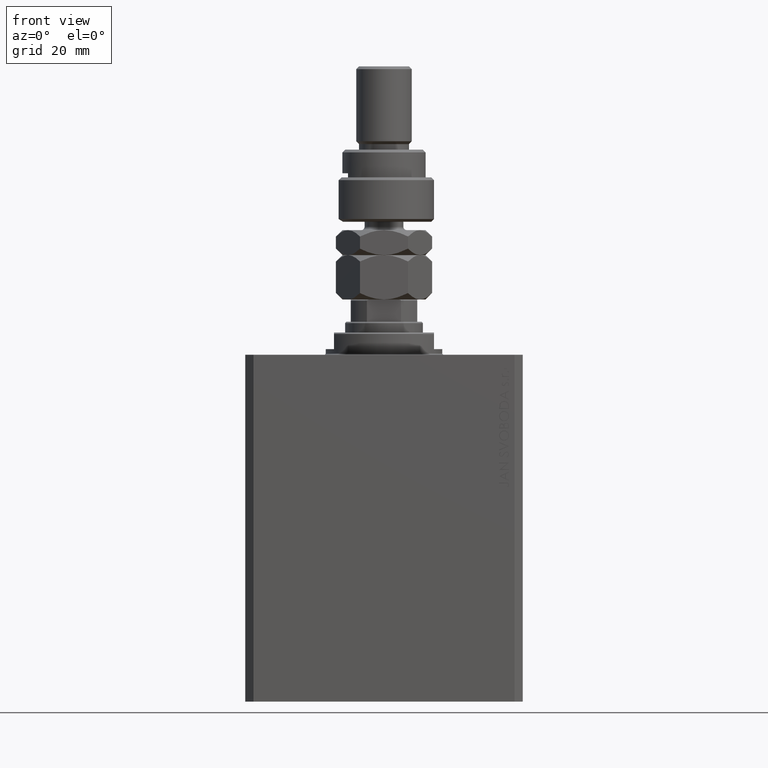
[diagram: clean part render]
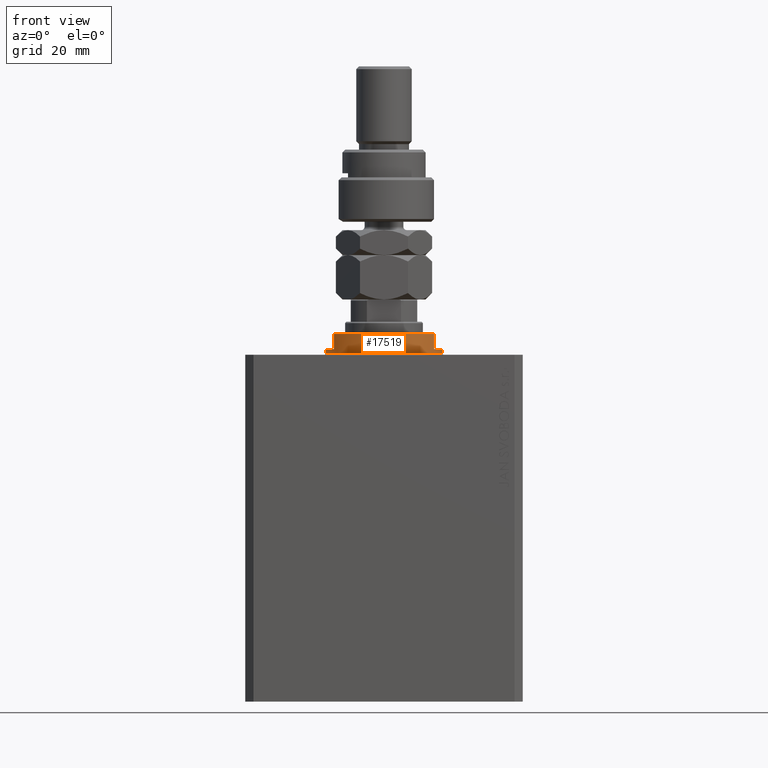
[diagram: same view with one face highlighted and labeled with its STEP entity id]
A machine part, front view. The second image highlights one B-rep face of the part: STEP entity #17519.
In plain terms, the highlighted cylindrical surface (partial cylindrical patch) has radius 21 mm, axis along (0, 0, -1).
Its self-contained STEP definition (entity closure, byte-faithful):
#772 = EDGE_CURVE ( 'NONE', #42263, #28367, #47730, .T. ) ;
#2718 = EDGE_CURVE ( 'NONE', #28367, #21606, #9465, .T. ) ;
#3368 = DIRECTION ( 'NONE',  ( 0.000000000000000000, 0.000000000000000000, -1.000000000000000000 ) ) ;
#3383 = CARTESIAN_POINT ( 'NONE',  ( 0.000000000000000000, 0.000000000000000000, -2.000000000000000000 ) ) ;
#3397 = LINE ( 'NONE', #45797, #23379 ) ;
#4826 = VERTEX_POINT ( 'NONE', #11067 ) ;
#6584 = EDGE_CURVE ( 'NONE', #42263, #4826, #26457, .T. ) ;
#7273 = DIRECTION ( 'NONE',  ( 1.000000000000000000, 0.000000000000000000, 0.000000000000000000 ) ) ;
#7583 = ORIENTED_EDGE ( 'NONE', *, *, #36104, .F. ) ;
#8823 = CARTESIAN_POINT ( 'NONE',  ( -18.00000000000000000, -10.81665382639197048, -2.000000000000000000 ) ) ;
#9465 = LINE ( 'NONE', #24954, #12126 ) ;
#10548 = VECTOR ( 'NONE', #3368, 1000.000000000000000 ) ;
#11050 = EDGE_LOOP ( 'NONE', ( #27677, #33572, #13134, #36958, #7583, #11919, #44505, #13402 ) ) ;
#11067 = CARTESIAN_POINT ( 'NONE',  ( -18.00000000000000000, -10.81665382639197048, -7.499999999999990230 ) ) ;
#11323 = CARTESIAN_POINT ( 'NONE',  ( 0.000000000000000000, 0.000000000000000000, -8.000000000000000000 ) ) ;
#11919 = ORIENTED_EDGE ( 'NONE', *, *, #20467, .F. ) ;
#12126 = VECTOR ( 'NONE', #44019, 1000.000000000000000 ) ;
#13134 = ORIENTED_EDGE ( 'NONE', *, *, #6584, .T. ) ;
#13234 = AXIS2_PLACEMENT_3D ( 'NONE', #14556, #19108, #38195 ) ;
#13402 = ORIENTED_EDGE ( 'NONE', *, *, #50139, .T. ) ;
#13613 = CARTESIAN_POINT ( 'NONE',  ( -21.00000000000000000, 2.571758278209441661E-15, -2.000000000000000000 ) ) ;
#13713 = CARTESIAN_POINT ( 'NONE',  ( 0.000000000000000000, 0.000000000000000000, -2.000000000000000000 ) ) ;
#14556 = CARTESIAN_POINT ( 'NONE',  ( 0.000000000000000000, 0.000000000000000000, -0.5000000000000004441 ) ) ;
#15611 = VERTEX_POINT ( 'NONE', #47370 ) ;
#17273 = CIRCLE ( 'NONE', #41653, 21.00000000000000000 ) ;
#17519 = ADVANCED_FACE ( 'NONE', ( #30392 ), #28006, .T. ) ;
#18594 = DIRECTION ( 'NONE',  ( 0.000000000000000000, 0.000000000000000000, -1.000000000000000000 ) ) ;
#19108 = DIRECTION ( 'NONE',  ( -0.000000000000000000, -0.000000000000000000, -1.000000000000000000 ) ) ;
#20467 = EDGE_CURVE ( 'NONE', #43501, #33152, #17273, .T. ) ;
#21260 = LINE ( 'NONE', #48660, #38217 ) ;
#21606 = VERTEX_POINT ( 'NONE', #47009 ) ;
#21819 = CIRCLE ( 'NONE', #25857, 21.00000000000000000 ) ;
#22332 = DIRECTION ( 'NONE',  ( -1.000000000000000000, 0.000000000000000000, 0.000000000000000000 ) ) ;
#23379 = VECTOR ( 'NONE', #35138, 1000.000000000000000 ) ;
#24954 = CARTESIAN_POINT ( 'NONE',  ( -21.00000000000000000, 2.571758278209441661E-15, -8.000000000000000000 ) ) ;
#25194 = CARTESIAN_POINT ( 'NONE',  ( 18.00000000000000000, -10.81665382639197048, -7.499999999999989342 ) ) ;
#25857 = AXIS2_PLACEMENT_3D ( 'NONE', #33815, #30010, #27188 ) ;
#25886 = EDGE_CURVE ( 'NONE', #43501, #15611, #21260, .T. ) ;
#26457 = LINE ( 'NONE', #41964, #10548 ) ;
#27188 = DIRECTION ( 'NONE',  ( -1.000000000000000000, 0.000000000000000000, 0.000000000000000000 ) ) ;
#27677 = ORIENTED_EDGE ( 'NONE', *, *, #2718, .F. ) ;
#28006 = CYLINDRICAL_SURFACE ( 'NONE', #45249, 21.00000000000000000 ) ;
#28260 = DIRECTION ( 'NONE',  ( -0.000000000000000000, -0.000000000000000000, 1.000000000000000000 ) ) ;
#28367 = VERTEX_POINT ( 'NONE', #13613 ) ;
#29596 = CARTESIAN_POINT ( 'NONE',  ( 21.00000000000000000, 0.000000000000000000, -2.000000000000000000 ) ) ;
#29639 = DIRECTION ( 'NONE',  ( -0.000000000000000000, -0.000000000000000000, 1.000000000000000000 ) ) ;
#30010 = DIRECTION ( 'NONE',  ( 0.000000000000000000, 0.000000000000000000, 1.000000000000000000 ) ) ;
#30392 = FACE_OUTER_BOUND ( 'NONE', #11050, .T. ) ;
#32349 = AXIS2_PLACEMENT_3D ( 'NONE', #13713, #37354, #22332 ) ;
#33152 = VERTEX_POINT ( 'NONE', #48065 ) ;
#33572 = ORIENTED_EDGE ( 'NONE', *, *, #772, .F. ) ;
#33815 = CARTESIAN_POINT ( 'NONE',  ( 0.000000000000000000, 0.000000000000000000, -7.499999999999989342 ) ) ;
#34114 = DIRECTION ( 'NONE',  ( -1.000000000000000000, 0.000000000000000000, 0.000000000000000000 ) ) ;
#35138 = DIRECTION ( 'NONE',  ( 0.000000000000000000, 0.000000000000000000, -1.000000000000000000 ) ) ;
#36104 = EDGE_CURVE ( 'NONE', #33152, #47093, #3397, .T. ) ;
#36370 = EDGE_CURVE ( 'NONE', #4826, #47093, #21819, .T. ) ;
#36958 = ORIENTED_EDGE ( 'NONE', *, *, #36370, .T. ) ;
#37354 = DIRECTION ( 'NONE',  ( 0.000000000000000000, 0.000000000000000000, -1.000000000000000000 ) ) ;
#38195 = DIRECTION ( 'NONE',  ( 1.000000000000000000, 0.000000000000000000, 0.000000000000000000 ) ) ;
#38217 = VECTOR ( 'NONE', #29639, 1000.000000000000000 ) ;
#41616 = CIRCLE ( 'NONE', #13234, 21.00000000000000000 ) ;
#41653 = AXIS2_PLACEMENT_3D ( 'NONE', #3383, #18594, #34114 ) ;
#41964 = CARTESIAN_POINT ( 'NONE',  ( -18.00000000000000000, -10.81665382639197048, -8.000000000000000000 ) ) ;
#42263 = VERTEX_POINT ( 'NONE', #8823 ) ;
#43501 = VERTEX_POINT ( 'NONE', #29596 ) ;
#44019 = DIRECTION ( 'NONE',  ( -0.000000000000000000, -0.000000000000000000, 1.000000000000000000 ) ) ;
#44505 = ORIENTED_EDGE ( 'NONE', *, *, #25886, .T. ) ;
#45249 = AXIS2_PLACEMENT_3D ( 'NONE', #11323, #28260, #7273 ) ;
#45797 = CARTESIAN_POINT ( 'NONE',  ( 18.00000000000000000, -10.81665382639197048, -8.000000000000000000 ) ) ;
#47009 = CARTESIAN_POINT ( 'NONE',  ( -21.00000000000000000, 2.571758278209441661E-15, -0.5000000000000004441 ) ) ;
#47093 = VERTEX_POINT ( 'NONE', #25194 ) ;
#47370 = CARTESIAN_POINT ( 'NONE',  ( 21.00000000000000000, 0.000000000000000000, -0.5000000000000004441 ) ) ;
#47730 = CIRCLE ( 'NONE', #32349, 21.00000000000000000 ) ;
#48065 = CARTESIAN_POINT ( 'NONE',  ( 18.00000000000000000, -10.81665382639197048, -2.000000000000000000 ) ) ;
#48660 = CARTESIAN_POINT ( 'NONE',  ( 21.00000000000000000, 0.000000000000000000, -8.000000000000000000 ) ) ;
#50139 = EDGE_CURVE ( 'NONE', #15611, #21606, #41616, .T. ) ;